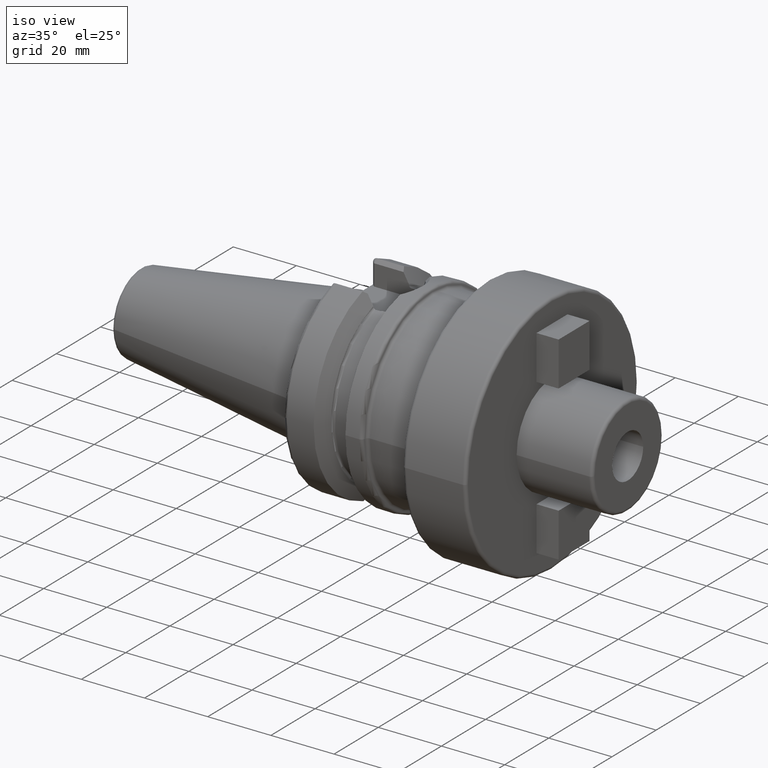
[diagram: clean part render]
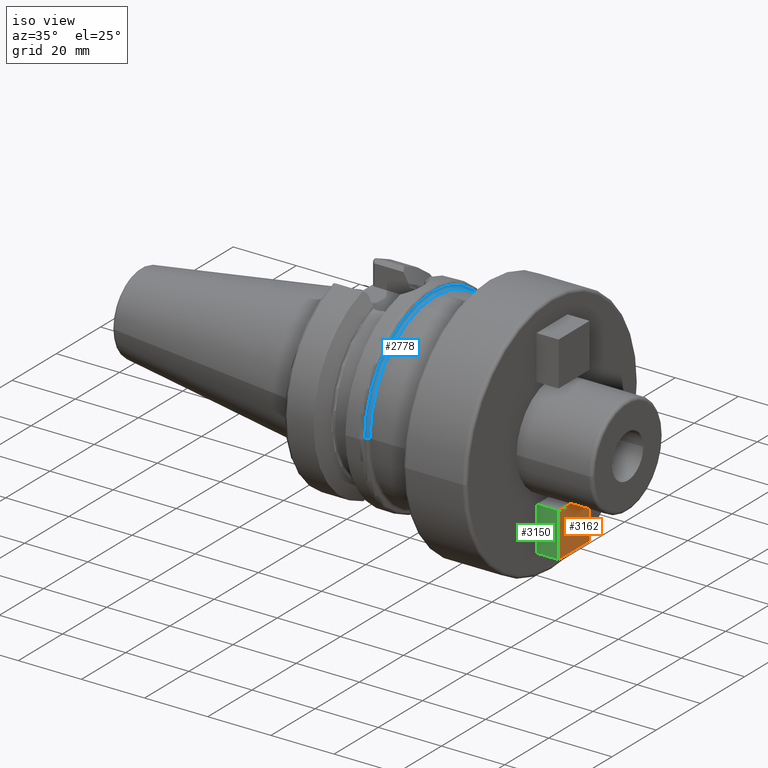
[diagram: same view with three faces highlighted in distinct colors, each labeled with its STEP entity id]
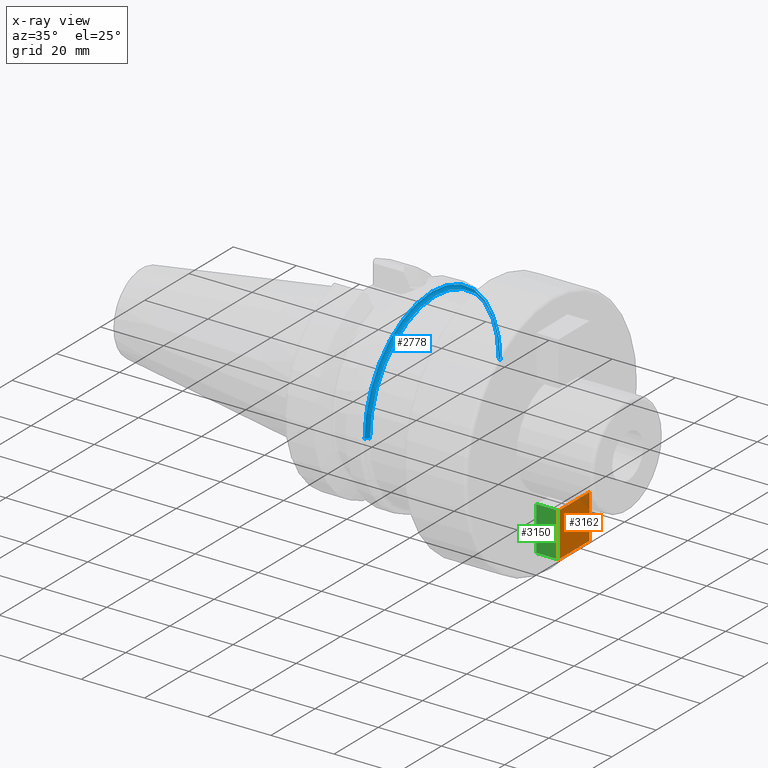
[diagram: x-ray of the same camera — body ghosted, the three highlighted faces saturated]
A machine part, iso view with three faces highlighted in distinct colors.
The next image is the same camera in x-ray (body ghosted, the three faces saturated) — at least one of them is partly hidden behind the body in this view.
Their STEP definitions:

[orange] entity #3162 — the highlighted planar face has unit normal (1, 0, 0).
#1094=DIRECTION('',(0.E0,-1.E0,0.E0));
#1095=VECTOR('',#1094,1.4E1);
#1096=CARTESIAN_POINT('',(7.2E1,7.E0,-1.75E1));
#1097=LINE('',#1096,#1095);
#1098=DIRECTION('',(0.E0,0.E0,1.E0));
#1099=VECTOR('',#1098,1.4E1);
#1100=CARTESIAN_POINT('',(7.2E1,7.E0,-3.15E1));
#1101=LINE('',#1100,#1099);
#1102=DIRECTION('',(0.E0,1.E0,0.E0));
#1103=VECTOR('',#1102,1.4E1);
#1104=CARTESIAN_POINT('',(7.2E1,-7.E0,-3.15E1));
#1105=LINE('',#1104,#1103);
#1106=DIRECTION('',(0.E0,0.E0,-1.E0));
#1107=VECTOR('',#1106,1.4E1);
#1108=CARTESIAN_POINT('',(7.2E1,-7.E0,-1.75E1));
#1109=LINE('',#1108,#1107);
#1601=CARTESIAN_POINT('',(7.2E1,7.E0,-1.75E1));
#1602=CARTESIAN_POINT('',(7.2E1,-7.E0,-1.75E1));
#1603=VERTEX_POINT('',#1601);
#1604=VERTEX_POINT('',#1602);
#1605=CARTESIAN_POINT('',(7.2E1,-7.E0,-3.15E1));
#1606=VERTEX_POINT('',#1605);
#1607=CARTESIAN_POINT('',(7.2E1,7.E0,-3.15E1));
#1608=VERTEX_POINT('',#1607);
#3151=CARTESIAN_POINT('',(7.2E1,0.E0,0.E0));
#3152=DIRECTION('',(1.E0,0.E0,0.E0));
#3153=DIRECTION('',(0.E0,0.E0,-1.E0));
#3154=AXIS2_PLACEMENT_3D('',#3151,#3152,#3153);
#3155=PLANE('',#3154);
#3156=ORIENTED_EDGE('',*,*,#3103,.F.);
#3157=ORIENTED_EDGE('',*,*,#3118,.F.);
#3158=ORIENTED_EDGE('',*,*,#3132,.F.);
#3159=ORIENTED_EDGE('',*,*,#3145,.F.);
#3160=EDGE_LOOP('',(#3156,#3157,#3158,#3159));
#3161=FACE_OUTER_BOUND('',#3160,.F.);
#3162=ADVANCED_FACE('',(#3161),#3155,.T.);
#3103=EDGE_CURVE('',#1603,#1604,#1097,.T.);
#3118=EDGE_CURVE('',#1608,#1603,#1101,.T.);
#3132=EDGE_CURVE('',#1606,#1608,#1105,.T.);
#3145=EDGE_CURVE('',#1604,#1606,#1109,.T.);

[blue] entity #2778 — the highlighted toroidal blend (fillet) surface has major radius 30.5 mm and minor (blend) radius 1 mm.
#816=CARTESIAN_POINT('',(2.699998046856E1,0.E0,0.E0));
#817=DIRECTION('',(1.E0,0.E0,0.E0));
#818=DIRECTION('',(0.E0,1.E0,0.E0));
#819=AXIS2_PLACEMENT_3D('',#816,#817,#818);
#836=CARTESIAN_POINT('',(2.799996093712E1,-3.05E1,4.335420911161E-14));
#837=DIRECTION('',(0.E0,0.E0,-1.E0));
#838=DIRECTION('',(-9.999804685593E-1,6.250000000183E-3,0.E0));
#839=AXIS2_PLACEMENT_3D('',#836,#837,#838);
#841=CARTESIAN_POINT('',(2.799996093712E1,3.05E1,-4.685141163918E-14));
#842=DIRECTION('',(0.E0,0.E0,1.E0));
#843=DIRECTION('',(-9.999804685593E-1,-6.250000000186E-3,0.E0));
#844=AXIS2_PLACEMENT_3D('',#841,#842,#843);
#846=CARTESIAN_POINT('',(2.799996093712E1,0.E0,0.E0));
#847=DIRECTION('',(1.E0,0.E0,0.E0));
#848=DIRECTION('',(0.E0,1.E0,0.E0));
#849=AXIS2_PLACEMENT_3D('',#846,#847,#848);
#1643=CARTESIAN_POINT('',(2.699998046856E1,3.049375E1,0.E0));
#1644=VERTEX_POINT('',#1643);
#1645=CARTESIAN_POINT('',(2.699998046856E1,-3.049375E1,0.E0));
#1646=VERTEX_POINT('',#1645);
#1647=CARTESIAN_POINT('',(2.799996093712E1,-2.95E1,0.E0));
#1648=CARTESIAN_POINT('',(2.799996093712E1,2.95E1,0.E0));
#1649=VERTEX_POINT('',#1647);
#1650=VERTEX_POINT('',#1648);
#2766=CARTESIAN_POINT('',(2.799996093712E1,0.E0,0.E0));
#2767=DIRECTION('',(1.E0,0.E0,0.E0));
#2768=DIRECTION('',(0.E0,9.999866508422E-1,-5.167024027789E-3));
#2769=AXIS2_PLACEMENT_3D('',#2766,#2767,#2768);
#2770=TOROIDAL_SURFACE('',#2769,3.05E1,1.E0);
#2771=ORIENTED_EDGE('',*,*,#2730,.F.);
#2772=ORIENTED_EDGE('',*,*,#2761,.T.);
#2774=ORIENTED_EDGE('',*,*,#2773,.T.);
#2775=ORIENTED_EDGE('',*,*,#2757,.F.);
#2776=EDGE_LOOP('',(#2771,#2772,#2774,#2775));
#2777=FACE_OUTER_BOUND('',#2776,.F.);
#2778=ADVANCED_FACE('',(#2777),#2770,.F.);
#820=CIRCLE('',#819,3.049375E1);
#840=CIRCLE('',#839,1.E0);
#845=CIRCLE('',#844,1.E0);
#850=CIRCLE('',#849,2.95E1);
#2730=EDGE_CURVE('',#1644,#1646,#820,.T.);
#2757=EDGE_CURVE('',#1646,#1649,#840,.T.);
#2761=EDGE_CURVE('',#1644,#1650,#845,.T.);
#2773=EDGE_CURVE('',#1650,#1649,#850,.T.);

[green] entity #3150 — the highlighted planar face has unit normal (0, -1, 0).
#976=DIRECTION('',(0.E0,0.E0,-1.E0));
#977=VECTOR('',#976,1.4E1);
#978=CARTESIAN_POINT('',(6.5E1,-7.E0,-1.75E1));
#979=LINE('',#978,#977);
#1086=DIRECTION('',(1.E0,0.E0,0.E0));
#1087=VECTOR('',#1086,7.E0);
#1088=CARTESIAN_POINT('',(6.5E1,-7.E0,-3.15E1));
#1089=LINE('',#1088,#1087);
#1090=DIRECTION('',(1.E0,0.E0,0.E0));
#1091=VECTOR('',#1090,7.E0);
#1092=CARTESIAN_POINT('',(6.5E1,-7.E0,-1.75E1));
#1093=LINE('',#1092,#1091);
#1106=DIRECTION('',(0.E0,0.E0,-1.E0));
#1107=VECTOR('',#1106,1.4E1);
#1108=CARTESIAN_POINT('',(7.2E1,-7.E0,-1.75E1));
#1109=LINE('',#1108,#1107);
#1602=CARTESIAN_POINT('',(7.2E1,-7.E0,-1.75E1));
#1604=VERTEX_POINT('',#1602);
#1605=CARTESIAN_POINT('',(7.2E1,-7.E0,-3.15E1));
#1606=VERTEX_POINT('',#1605);
#1618=CARTESIAN_POINT('',(6.5E1,-7.E0,-1.75E1));
#1620=VERTEX_POINT('',#1618);
#1621=CARTESIAN_POINT('',(6.5E1,-7.E0,-3.15E1));
#1622=VERTEX_POINT('',#1621);
#3138=CARTESIAN_POINT('',(6.5E1,-7.E0,-1.75E1));
#3139=DIRECTION('',(0.E0,-1.E0,0.E0));
#3140=DIRECTION('',(0.E0,0.E0,-1.E0));
#3141=AXIS2_PLACEMENT_3D('',#3138,#3139,#3140);
#3142=PLANE('',#3141);
#3143=ORIENTED_EDGE('',*,*,#2952,.F.);
#3144=ORIENTED_EDGE('',*,*,#3105,.T.);
#3146=ORIENTED_EDGE('',*,*,#3145,.T.);
#3147=ORIENTED_EDGE('',*,*,#3130,.F.);
#3148=EDGE_LOOP('',(#3143,#3144,#3146,#3147));
#3149=FACE_OUTER_BOUND('',#3148,.F.);
#3150=ADVANCED_FACE('',(#3149),#3142,.T.);
#2952=EDGE_CURVE('',#1620,#1622,#979,.T.);
#3105=EDGE_CURVE('',#1620,#1604,#1093,.T.);
#3130=EDGE_CURVE('',#1622,#1606,#1089,.T.);
#3145=EDGE_CURVE('',#1604,#1606,#1109,.T.);